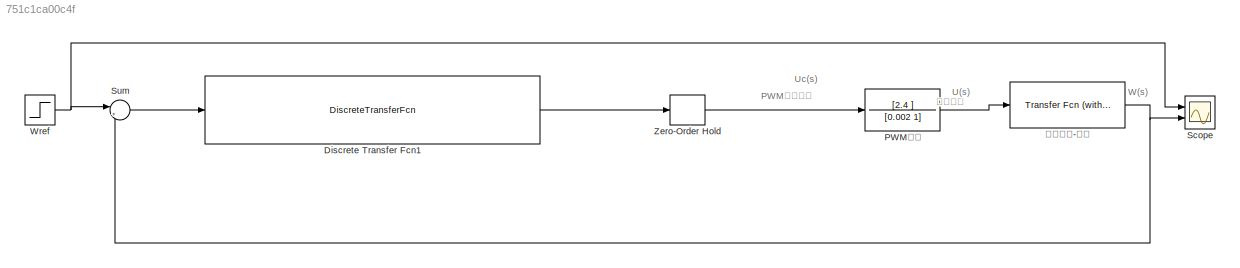
MODEL slx_751c1ca00c4f
KIND model
CONFIG AbsTol = auto
CONFIG EnableMultiTasking = off
CONFIG FixedStep = auto
CONFIG MaxStep = auto
CONFIG MinStep = auto
CONFIG RelTol = 1e-3
CONFIG SampleTimeConstraint = Unconstrained
CONFIG Solver = VariableStepAuto
CONFIG SolverName = VariableStepAuto
CONFIG StartTime = 0.0
CONFIG StopTime = 10.0
BLOCK [DiscreteTransferFcn] Discrete Transfer Fcn1
  Denominator = [1 -0.3892 5.683 -3.697 0.9116 -0.00597]
  InputPortMap = u0
  Numerator = [0.000001208 0]
  Ports = [1, 1]
  SampleTime = 0.01
BLOCK [TransferFcn] PWM功放
  Denominator = [0.002 1]
  Numerator = [2.4 ]
BLOCK [Scope] Scope
  Floating = off
  NumInputPorts = 2
  Ports = [2]
  ScopeSpecificationString = Simulink.scopes.TimeScopeBlockCfg('CurrentConfiguration', extmgr.ConfigurationSet(extmgr.Configuration('Core','General UI',true),extmgr.Configuration('Core','Source UI',true),extmgr.Configuration('Sources','WiredSimulink',true),extmgr.Configuration('Visuals','Time Domain',true,'SerializedDisplays',{struct('MinYLimReal','0.9999991','MaxYLimReal','1.0000032','YLabelReal','','MinYLimMag','0.9999991',...<+1452ch>
BLOCK [Sum] Sum
  IconShape = round
  InputSameDT = off
  Inputs = |+-
  OutDataTypeStr = Inherit: Inherit via internal rule
  Ports = [2, 1]
  SaturateOnIntegerOverflow = off
BLOCK [Step] Wref 
  SampleTime = 0
  Time = 0
BLOCK [ZeroOrderHold] Zero-Order Hold
  SampleTime = 0.01
BLOCK [Reference] 被控对象-电机   REF=simulink_extras/Additional
Linear/Transfer Fcn
(with initial outputs)
  Ports = [1, 1]
  SourceBlock = simulink_extras/Additional\nLinear/Transfer Fcn\n(with initial outputs)
  SourceProductBaseCode = SL
  SourceProductName = Simulink
  SourceType = Transfer Function with Initial Outputs
ANNOTATION (root): PWM控制电压
ANNOTATION (root): U(s)
ANNOTATION (root): Uc(s)
ANNOTATION (root): W(s)
ANNOTATION (root): 电机电压
LINE Discrete Transfer Fcn1:1 -> Zero-Order Hold:1
LINE PWM功放:1 -> 被控对象-电机 :1
LINE Sum:1 -> Discrete Transfer Fcn1:1
NET Wref :1 -> Scope:1, Sum:1
LINE Zero-Order Hold:1 -> PWM功放:1
NET 被控对象-电机 :1 -> Scope:2, Sum:2
note: NET lines group one-source signal fan-out (src -> all destinations, sorted); 1:1 wires keep LINE
